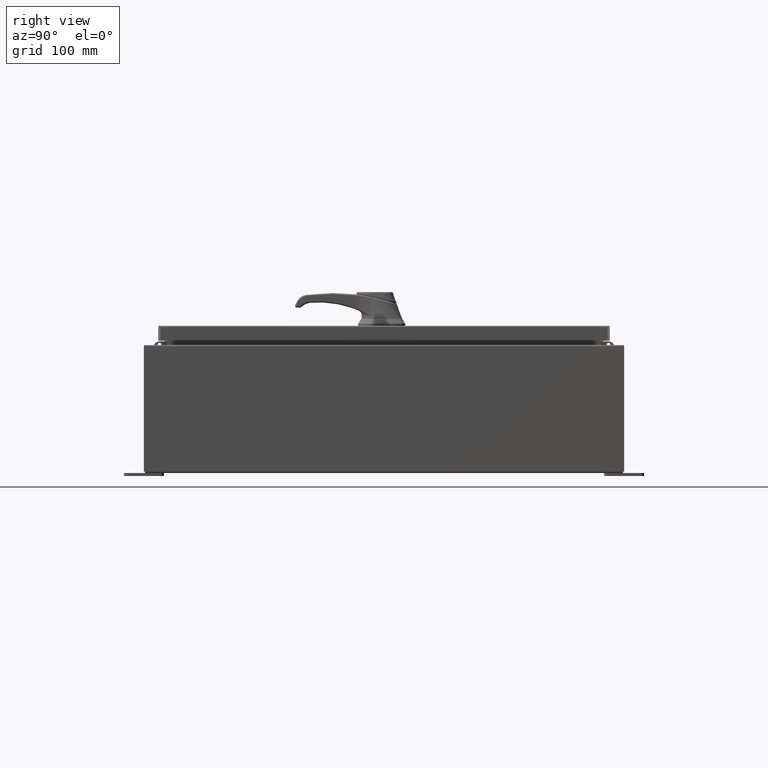
[diagram: clean part render]
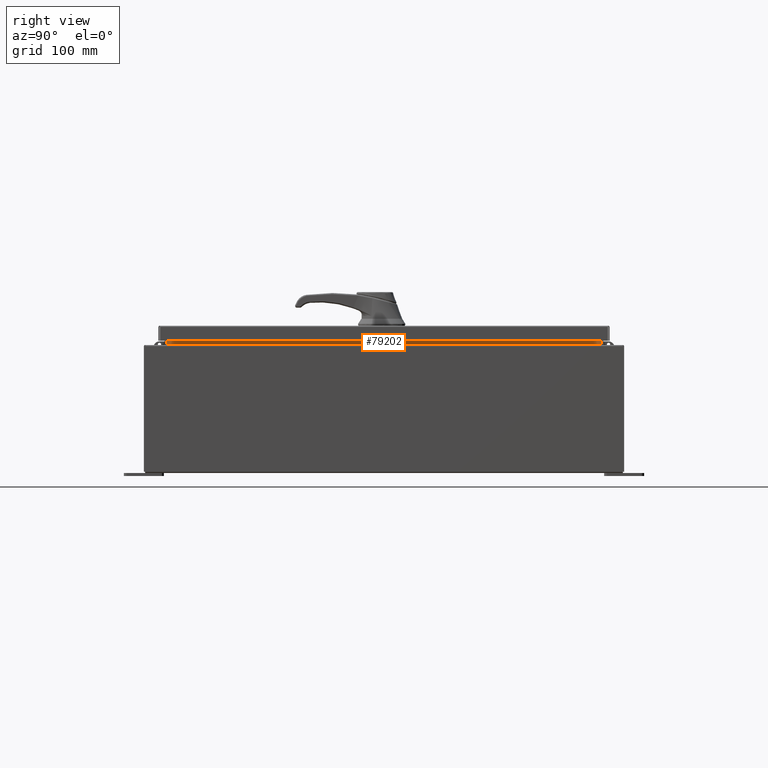
[diagram: same view with one face highlighted and labeled with its STEP entity id]
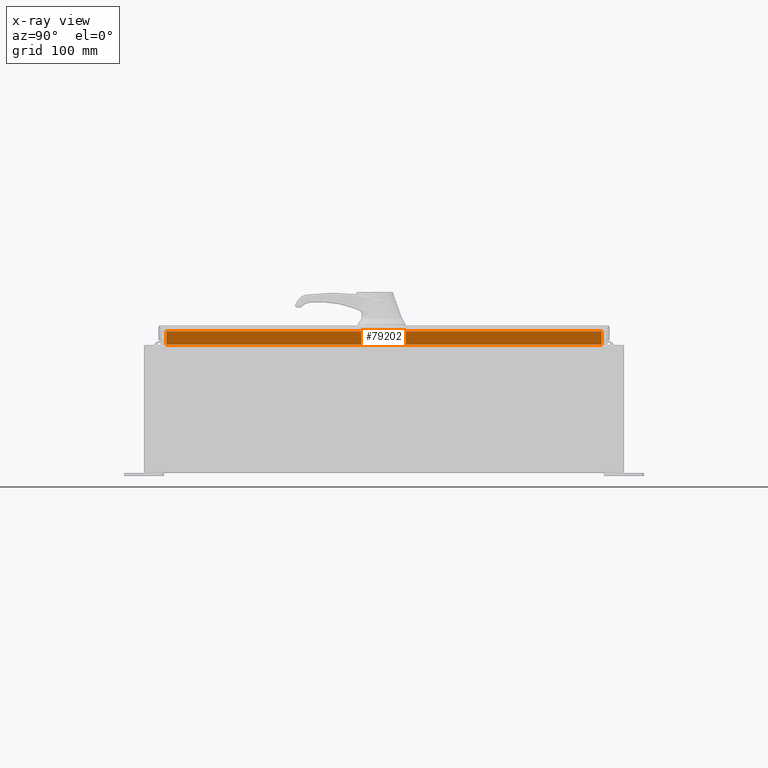
[diagram: x-ray of the same camera — body ghosted, the highlighted face saturated]
A machine part, right view. The second image highlights one B-rep face of the part: STEP entity #79202.
The next image is the same camera in x-ray: the body ghosted, the highlighted face saturated — about 0% of this face is hidden behind the body in this view.
In plain terms, the highlighted planar face has unit normal (1, 0, -0).
Its self-contained STEP definition (entity closure, byte-faithful):
#3790 = CARTESIAN_POINT ( 'NONE',  ( 13.69970000000003000, 13.59374999999998600, 7.938300000000010600 ) ) ;
#14279 = VERTEX_POINT ( 'NONE', #80446 ) ;
#16275 = DIRECTION ( 'NONE',  ( 0.0000000000000000000, 1.000000000000000000, 0.0000000000000000000 ) ) ;
#19969 = LINE ( 'NONE', #79255, #60283 ) ;
#20616 = ORIENTED_EDGE ( 'NONE', *, *, #100631, .F. ) ;
#23818 = CARTESIAN_POINT ( 'NONE',  ( 13.69970000000001100, 0.0000000000000000000, -3.235750390904772800E-014 ) ) ;
#24880 = CARTESIAN_POINT ( 'NONE',  ( 13.69970000000003000, 13.59375000000000200, 7.925300000000007100 ) ) ;
#29460 = EDGE_LOOP ( 'NONE', ( #96504, #20616, #62017, #82873 ) ) ;
#34128 = DIRECTION ( 'NONE',  ( -2.361913319930196000E-015, -0.0000000000000000000, -1.000000000000000000 ) ) ;
#48099 = LINE ( 'NONE', #107348, #94418 ) ;
#50362 = FACE_OUTER_BOUND ( 'NONE', #29460, .T. ) ;
#51997 = DIRECTION ( 'NONE',  ( -2.361913319930196000E-015, 0.0000000000000000000, -1.000000000000000000 ) ) ;
#55123 = LINE ( 'NONE', #71579, #82613 ) ;
#57833 = LINE ( 'NONE', #24880, #76587 ) ;
#60283 = VECTOR ( 'NONE', #116445, 39.37007874015748100 ) ;
#62017 = ORIENTED_EDGE ( 'NONE', *, *, #86982, .F. ) ;
#71579 = CARTESIAN_POINT ( 'NONE',  ( 13.69970000000003200, -13.59375000000000200, 8.762900000000007200 ) ) ;
#75318 = VERTEX_POINT ( 'NONE', #106908 ) ;
#76587 = VECTOR ( 'NONE', #34128, 39.37007874015748100 ) ;
#77711 = EDGE_CURVE ( 'NONE', #101199, #111099, #57833, .T. ) ;
#78379 = CARTESIAN_POINT ( 'NONE',  ( 13.69970000000003200, 13.59375000000000200, 8.762900000000007200 ) ) ;
#79202 = ADVANCED_FACE ( 'NONE', ( #50362 ), #98106, .T. ) ;
#79255 = CARTESIAN_POINT ( 'NONE',  ( 13.69970000000003000, 13.59375000000000200, 7.938300000000007900 ) ) ;
#80446 = CARTESIAN_POINT ( 'NONE',  ( 13.69970000000003200, -13.59375000000000200, 8.762900000000007200 ) ) ;
#82613 = VECTOR ( 'NONE', #16275, 39.37007874015748100 ) ;
#82873 = ORIENTED_EDGE ( 'NONE', *, *, #119541, .F. ) ;
#86982 = EDGE_CURVE ( 'NONE', #75318, #14279, #48099, .T. ) ;
#94418 = VECTOR ( 'NONE', #116660, 39.37007874015748100 ) ;
#96504 = ORIENTED_EDGE ( 'NONE', *, *, #77711, .F. ) ;
#97023 = AXIS2_PLACEMENT_3D ( 'NONE', #23818, #107368, #51997 ) ;
#98106 = PLANE ( 'NONE',  #97023 ) ;
#100631 = EDGE_CURVE ( 'NONE', #14279, #101199, #55123, .T. ) ;
#101199 = VERTEX_POINT ( 'NONE', #78379 ) ;
#106908 = CARTESIAN_POINT ( 'NONE',  ( 13.69970000000003000, -13.59375000000000400, 7.938300000000010600 ) ) ;
#107348 = CARTESIAN_POINT ( 'NONE',  ( 13.69970000000003200, -13.59375000000000200, 8.850600000000007100 ) ) ;
#107368 = DIRECTION ( 'NONE',  ( 1.000000000000000000, 0.0000000000000000000, -2.361913319930196000E-015 ) ) ;
#111099 = VERTEX_POINT ( 'NONE', #3790 ) ;
#116445 = DIRECTION ( 'NONE',  ( 8.038541222736220000E-017, -1.000000000000000000, 2.411562366820865800E-016 ) ) ;
#116660 = DIRECTION ( 'NONE',  ( 2.361913319930201500E-015, -0.0000000000000000000, 1.000000000000000000 ) ) ;
#119541 = EDGE_CURVE ( 'NONE', #111099, #75318, #19969, .T. ) ;